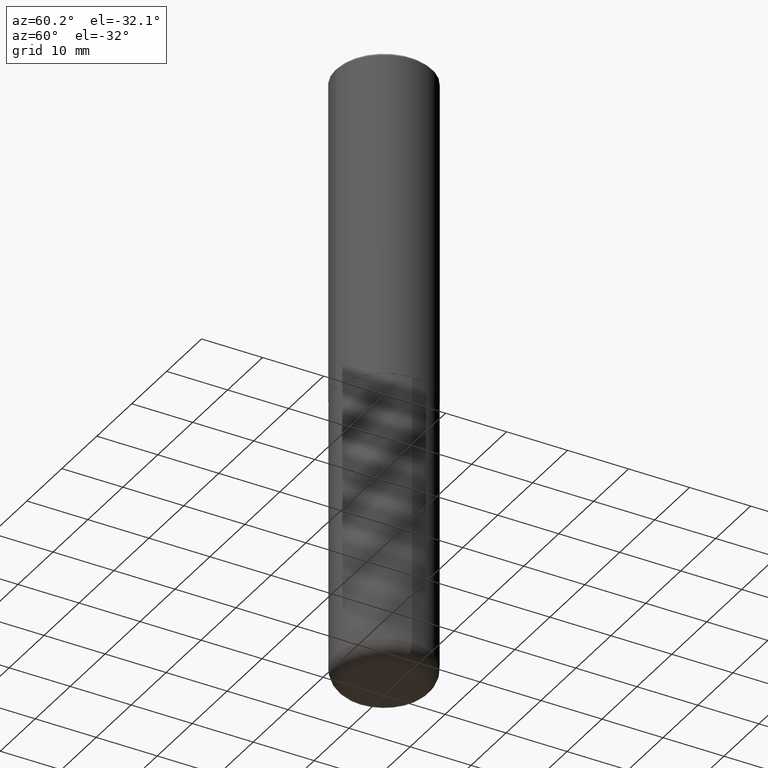
[diagram: clean part render]
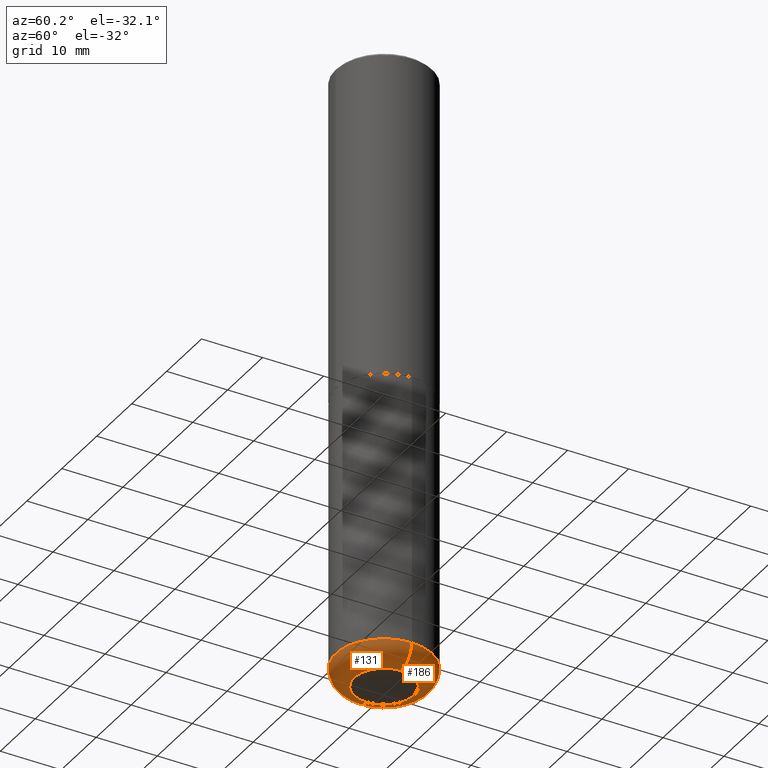
[diagram: same view with one multi-face feature highlighted, each face labeled with its STEP entity id]
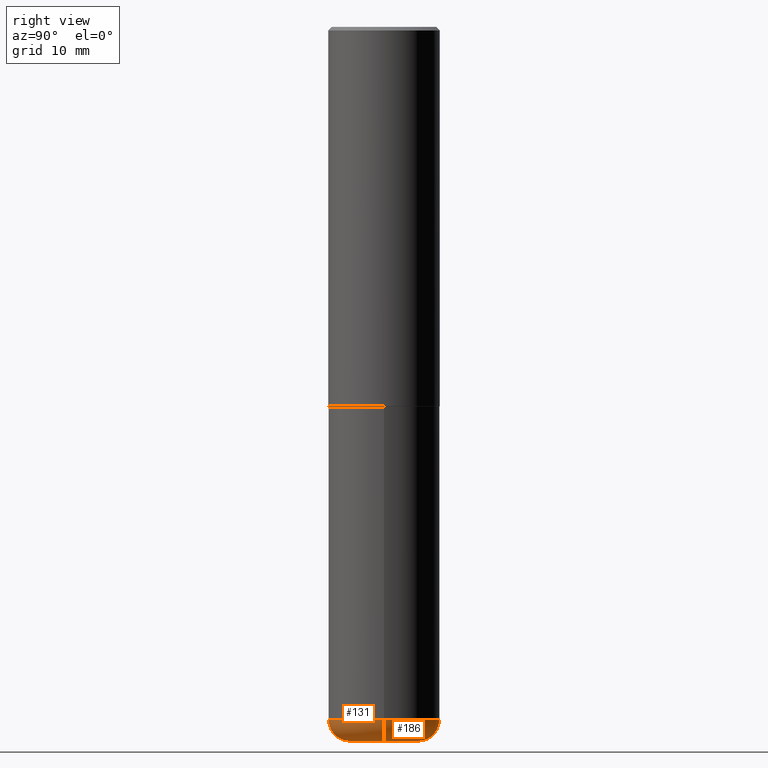
[diagram: same view with one multi-face feature highlighted, each face labeled with its STEP entity id]
A machine part, auxiliary view. The highlighted faces form ONE feature: a constant-radius fillet chain: 2 tangent blend faces with common blend radius 3.048 mm. The faces share edges in the B-rep.
A second angle (right view) of the same feature is appended — it is thin or edge-on in the first view.
Their STEP definitions:
[1] entity #186 (Torus):
#2 = CIRCLE ( 'NONE', #113, 0.3125000000000000000 ) ;
#3 = CARTESIAN_POINT ( 'NONE',  ( -0.1925000000000000044, -1.196231606724774300E-14, -4.000000000000000888 ) ) ;
#4 = DIRECTION ( 'NONE',  ( 1.000000000000000000, -6.982962677686276177E-15, 0.000000000000000000 ) ) ;
#5 = CIRCLE ( 'NONE', #230, 0.1925000000000000044 ) ;
#22 = AXIS2_PLACEMENT_3D ( 'NONE', #58, #183, #125 ) ;
#43 = CARTESIAN_POINT ( 'NONE',  ( 0.3125000000000000555, -1.572912343148836404E-14, -3.880000000000000338 ) ) ;
#52 = VERTEX_POINT ( 'NONE', #43 ) ;
#53 = DIRECTION ( 'NONE',  ( 1.000000000000000000, -6.982962677686269077E-15, 0.000000000000000000 ) ) ;
#58 = CARTESIAN_POINT ( 'NONE',  ( 9.488418967998330085E-29, -1.354694759471140570E-14, -3.880000000000000338 ) ) ;
#61 = ORIENTED_EDGE ( 'NONE', *, *, #190, .T. ) ;
#70 = CIRCLE ( 'NONE', #124, 0.1200000000000001482 ) ;
#92 = DIRECTION ( 'NONE',  ( -2.445468806185136597E-29, 3.491481338843145583E-15, 1.000000000000000000 ) ) ;
#105 = EDGE_CURVE ( 'NONE', #228, #211, #70, .T. ) ;
#113 = AXIS2_PLACEMENT_3D ( 'NONE', #399, #92, #386 ) ;
#119 = DIRECTION ( 'NONE',  ( -6.982962677686266711E-15, -1.000000000000000000, 3.491481338843145583E-15 ) ) ;
#124 = AXIS2_PLACEMENT_3D ( 'NONE', #208, #303, #400 ) ;
#125 = DIRECTION ( 'NONE',  ( 1.000000000000000000, -6.982962677686265922E-15, 4.883557194083112340E-29 ) ) ;
#130 = CARTESIAN_POINT ( 'NONE',  ( -0.3125000000000000555, -1.132650154546109262E-14, -3.880000000000000338 ) ) ;
#134 = FACE_OUTER_BOUND ( 'NONE', #309, .T. ) ;
#136 = CARTESIAN_POINT ( 'NONE',  ( 0.1925000000000000044, -1.531014567082719057E-14, -4.000000000000000888 ) ) ;
#183 = DIRECTION ( 'NONE',  ( -2.445468806185136597E-29, 3.491481338843145583E-15, 1.000000000000000000 ) ) ;
#186 = ADVANCED_FACE ( 'NONE', ( #134 ), #217, .T. ) ;
#190 = EDGE_CURVE ( 'NONE', #239, #228, #5, .T. ) ;
#208 = CARTESIAN_POINT ( 'NONE',  ( -0.1925000000000000044, -1.217915282837321360E-14, -3.880000000000000338 ) ) ;
#211 = VERTEX_POINT ( 'NONE', #130 ) ;
#217 = TOROIDAL_SURFACE ( 'NONE', #22, 0.1925000000000000044, 0.1200000000000001898 ) ;
#228 = VERTEX_POINT ( 'NONE', #3 ) ;
#230 = AXIS2_PLACEMENT_3D ( 'NONE', #349, #244, #53 ) ;
#239 = VERTEX_POINT ( 'NONE', #136 ) ;
#244 = DIRECTION ( 'NONE',  ( -2.445468806185136597E-29, 3.491481338843145583E-15, 1.000000000000000000 ) ) ;
#249 = AXIS2_PLACEMENT_3D ( 'NONE', #305, #119, #4 ) ;
#268 = CIRCLE ( 'NONE', #249, 0.1200000000000001482 ) ;
#275 = ORIENTED_EDGE ( 'NONE', *, *, #360, .F. ) ;
#303 = DIRECTION ( 'NONE',  ( 7.105427357601001859E-15, 1.000000000000000000, -3.491481338843145583E-15 ) ) ;
#305 = CARTESIAN_POINT ( 'NONE',  ( 0.1925000000000000044, -1.489116791016601393E-14, -3.880000000000000338 ) ) ;
#309 = EDGE_LOOP ( 'NONE', ( #61, #348, #412, #275 ) ) ;
#334 = EDGE_CURVE ( 'NONE', #52, #211, #2, .T. ) ;
#348 = ORIENTED_EDGE ( 'NONE', *, *, #105, .T. ) ;
#349 = CARTESIAN_POINT ( 'NONE',  ( 9.781875224740547508E-29, -1.396592535537258391E-14, -4.000000000000000888 ) ) ;
#360 = EDGE_CURVE ( 'NONE', #239, #52, #268, .T. ) ;
#386 = DIRECTION ( 'NONE',  ( 1.000000000000000000, -6.982962677686269077E-15, 0.000000000000000000 ) ) ;
#399 = CARTESIAN_POINT ( 'NONE',  ( 9.488418967998330085E-29, -1.354694759471140570E-14, -3.880000000000000338 ) ) ;
#400 = DIRECTION ( 'NONE',  ( -1.000000000000000000, 7.105427357600998703E-15, 0.000000000000000000 ) ) ;
#412 = ORIENTED_EDGE ( 'NONE', *, *, #334, .F. ) ;
[2] entity #131 (Torus):
#1 = TOROIDAL_SURFACE ( 'NONE', #229, 0.1925000000000000044, 0.1200000000000001898 ) ;
#3 = CARTESIAN_POINT ( 'NONE',  ( -0.1925000000000000044, -1.196231606724774300E-14, -4.000000000000000888 ) ) ;
#4 = DIRECTION ( 'NONE',  ( 1.000000000000000000, -6.982962677686276177E-15, 0.000000000000000000 ) ) ;
#7 = DIRECTION ( 'NONE',  ( 1.000000000000000000, -6.982962677686269077E-15, 0.000000000000000000 ) ) ;
#32 = DIRECTION ( 'NONE',  ( -2.445468806185136597E-29, 3.491481338843145583E-15, 1.000000000000000000 ) ) ;
#43 = CARTESIAN_POINT ( 'NONE',  ( 0.3125000000000000555, -1.572912343148836404E-14, -3.880000000000000338 ) ) ;
#52 = VERTEX_POINT ( 'NONE', #43 ) ;
#62 = DIRECTION ( 'NONE',  ( -2.445468806185136597E-29, 3.491481338843145583E-15, 1.000000000000000000 ) ) ;
#70 = CIRCLE ( 'NONE', #124, 0.1200000000000001482 ) ;
#105 = EDGE_CURVE ( 'NONE', #228, #211, #70, .T. ) ;
#119 = DIRECTION ( 'NONE',  ( -6.982962677686266711E-15, -1.000000000000000000, 3.491481338843145583E-15 ) ) ;
#120 = AXIS2_PLACEMENT_3D ( 'NONE', #393, #32, #7 ) ;
#124 = AXIS2_PLACEMENT_3D ( 'NONE', #208, #303, #400 ) ;
#130 = CARTESIAN_POINT ( 'NONE',  ( -0.3125000000000000555, -1.132650154546109262E-14, -3.880000000000000338 ) ) ;
#131 = ADVANCED_FACE ( 'NONE', ( #307 ), #1, .T. ) ;
#132 = CIRCLE ( 'NONE', #120, 0.1925000000000000044 ) ;
#136 = CARTESIAN_POINT ( 'NONE',  ( 0.1925000000000000044, -1.531014567082719057E-14, -4.000000000000000888 ) ) ;
#157 = CARTESIAN_POINT ( 'NONE',  ( 9.488418967998330085E-29, -1.354694759471140570E-14, -3.880000000000000338 ) ) ;
#168 = ORIENTED_EDGE ( 'NONE', *, *, #360, .T. ) ;
#191 = CARTESIAN_POINT ( 'NONE',  ( 9.488418967998330085E-29, -1.354694759471140570E-14, -3.880000000000000338 ) ) ;
#208 = CARTESIAN_POINT ( 'NONE',  ( -0.1925000000000000044, -1.217915282837321360E-14, -3.880000000000000338 ) ) ;
#211 = VERTEX_POINT ( 'NONE', #130 ) ;
#215 = DIRECTION ( 'NONE',  ( 1.000000000000000000, -6.982962677686265922E-15, 4.883557194083112340E-29 ) ) ;
#228 = VERTEX_POINT ( 'NONE', #3 ) ;
#229 = AXIS2_PLACEMENT_3D ( 'NONE', #157, #358, #215 ) ;
#233 = ORIENTED_EDGE ( 'NONE', *, *, #395, .F. ) ;
#239 = VERTEX_POINT ( 'NONE', #136 ) ;
#248 = DIRECTION ( 'NONE',  ( 1.000000000000000000, -6.982962677686269077E-15, 0.000000000000000000 ) ) ;
#249 = AXIS2_PLACEMENT_3D ( 'NONE', #305, #119, #4 ) ;
#262 = ORIENTED_EDGE ( 'NONE', *, *, #285, .T. ) ;
#263 = ORIENTED_EDGE ( 'NONE', *, *, #105, .F. ) ;
#268 = CIRCLE ( 'NONE', #249, 0.1200000000000001482 ) ;
#285 = EDGE_CURVE ( 'NONE', #228, #239, #132, .T. ) ;
#303 = DIRECTION ( 'NONE',  ( 7.105427357601001859E-15, 1.000000000000000000, -3.491481338843145583E-15 ) ) ;
#305 = CARTESIAN_POINT ( 'NONE',  ( 0.1925000000000000044, -1.489116791016601393E-14, -3.880000000000000338 ) ) ;
#307 = FACE_OUTER_BOUND ( 'NONE', #407, .T. ) ;
#332 = AXIS2_PLACEMENT_3D ( 'NONE', #191, #62, #248 ) ;
#358 = DIRECTION ( 'NONE',  ( -2.445468806185136597E-29, 3.491481338843145583E-15, 1.000000000000000000 ) ) ;
#360 = EDGE_CURVE ( 'NONE', #239, #52, #268, .T. ) ;
#393 = CARTESIAN_POINT ( 'NONE',  ( 9.781875224740547508E-29, -1.396592535537258391E-14, -4.000000000000000888 ) ) ;
#395 = EDGE_CURVE ( 'NONE', #211, #52, #410, .T. ) ;
#400 = DIRECTION ( 'NONE',  ( -1.000000000000000000, 7.105427357600998703E-15, 0.000000000000000000 ) ) ;
#407 = EDGE_LOOP ( 'NONE', ( #263, #262, #168, #233 ) ) ;
#410 = CIRCLE ( 'NONE', #332, 0.3125000000000000000 ) ;